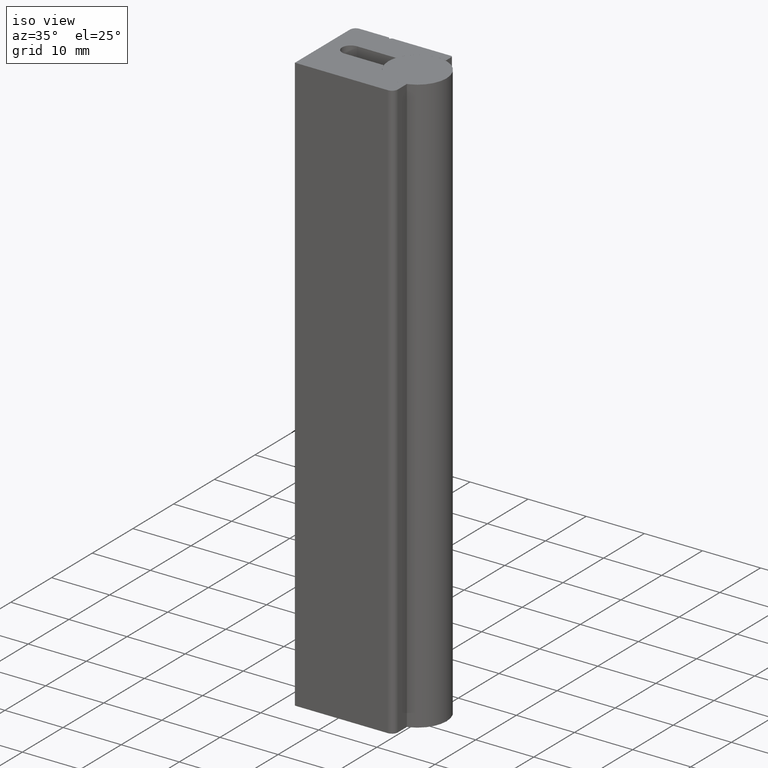
[diagram: clean part render]
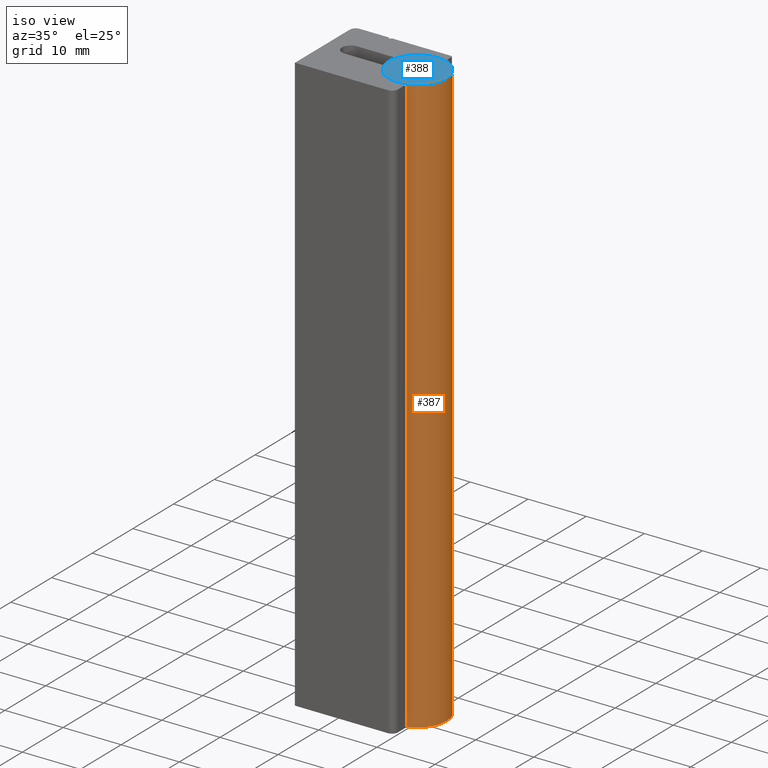
[diagram: same view with the hole feature highlighted: cylindrical wall and planar end face, labeled with their STEP entity ids]
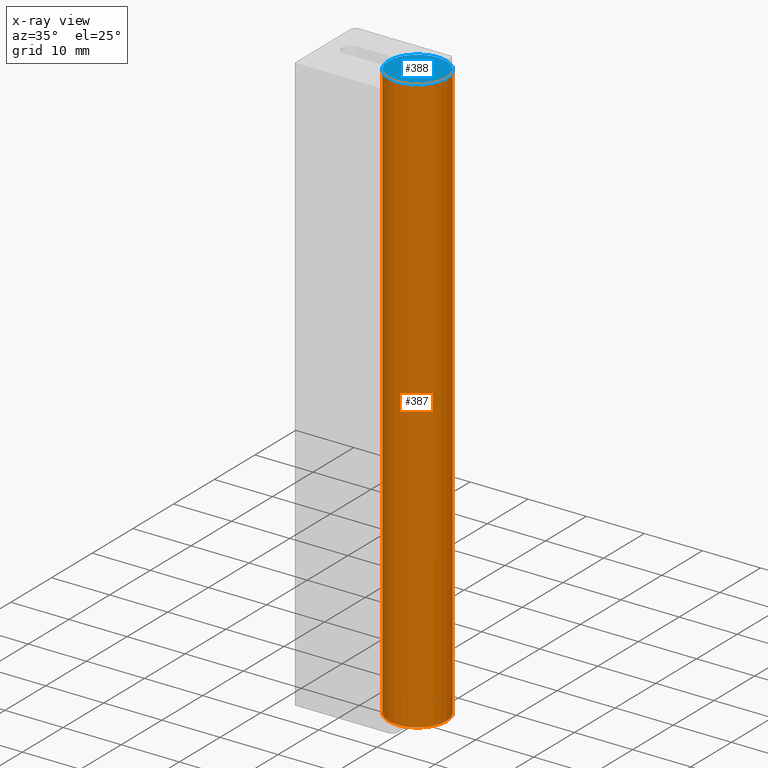
[diagram: x-ray of the same camera — body ghosted, the hole faces saturated]
A machine part, iso view. The highlighted faces form one hole feature of diameter 10 mm: the cylindrical wall (entity #387, orange) and its adjacent planar end face (entity #388, blue) — they share a circular edge in the B-rep.
The next image is the same camera in x-ray (body ghosted, the hole faces saturated) — the bore reads through the body.
Wall:
#43=CIRCLE('',#470,5.);
#44=CIRCLE('',#471,5.);
#51=CYLINDRICAL_SURFACE('',#469,5.);
#70=FACE_OUTER_BOUND('',#91,.T.);
#91=EDGE_LOOP('',(#349,#350,#351,#352));
#130=LINE('',#701,#167);
#167=VECTOR('',#583,5.);
#200=VERTEX_POINT('',#698);
#201=VERTEX_POINT('',#700);
#250=EDGE_CURVE('',#200,#200,#43,.T.);
#251=EDGE_CURVE('',#200,#201,#130,.T.);
#252=EDGE_CURVE('',#201,#201,#44,.T.);
#349=ORIENTED_EDGE('',*,*,#250,.F.);
#350=ORIENTED_EDGE('',*,*,#251,.T.);
#351=ORIENTED_EDGE('',*,*,#252,.T.);
#352=ORIENTED_EDGE('',*,*,#251,.F.);
#387=ADVANCED_FACE('',(#70),#51,.T.);
#469=AXIS2_PLACEMENT_3D('',#697,#579,#580);
#470=AXIS2_PLACEMENT_3D('',#699,#581,#582);
#471=AXIS2_PLACEMENT_3D('',#702,#584,#585);
#579=DIRECTION('center_axis',(0.,0.,1.));
#580=DIRECTION('ref_axis',(1.,0.,0.));
#581=DIRECTION('center_axis',(0.,0.,1.));
#582=DIRECTION('ref_axis',(1.,0.,0.));
#583=DIRECTION('',(0.,0.,-1.));
#584=DIRECTION('center_axis',(0.,0.,1.));
#585=DIRECTION('ref_axis',(1.,0.,0.));
#697=CARTESIAN_POINT('Origin',(0.,0.,0.));
#698=CARTESIAN_POINT('',(-5.,-6.12323399573677E-16,100.));
#699=CARTESIAN_POINT('Origin',(0.,0.,100.));
#700=CARTESIAN_POINT('',(-5.,-6.12323399573677E-16,0.));
#701=CARTESIAN_POINT('',(-5.,-6.12323399573677E-16,0.));
#702=CARTESIAN_POINT('Origin',(0.,0.,0.));
End face:
#43=CIRCLE('',#470,5.);
#71=FACE_OUTER_BOUND('',#92,.T.);
#92=EDGE_LOOP('',(#353));
#200=VERTEX_POINT('',#698);
#250=EDGE_CURVE('',#200,#200,#43,.T.);
#353=ORIENTED_EDGE('',*,*,#250,.T.);
#367=PLANE('',#472);
#388=ADVANCED_FACE('',(#71),#367,.T.);
#470=AXIS2_PLACEMENT_3D('',#699,#581,#582);
#472=AXIS2_PLACEMENT_3D('',#703,#586,#587);
#581=DIRECTION('center_axis',(0.,0.,1.));
#582=DIRECTION('ref_axis',(1.,0.,0.));
#586=DIRECTION('center_axis',(0.,0.,1.));
#587=DIRECTION('ref_axis',(1.,0.,0.));
#698=CARTESIAN_POINT('',(-5.,-6.12323399573677E-16,100.));
#699=CARTESIAN_POINT('Origin',(0.,0.,100.));
#703=CARTESIAN_POINT('Origin',(0.,0.,100.));